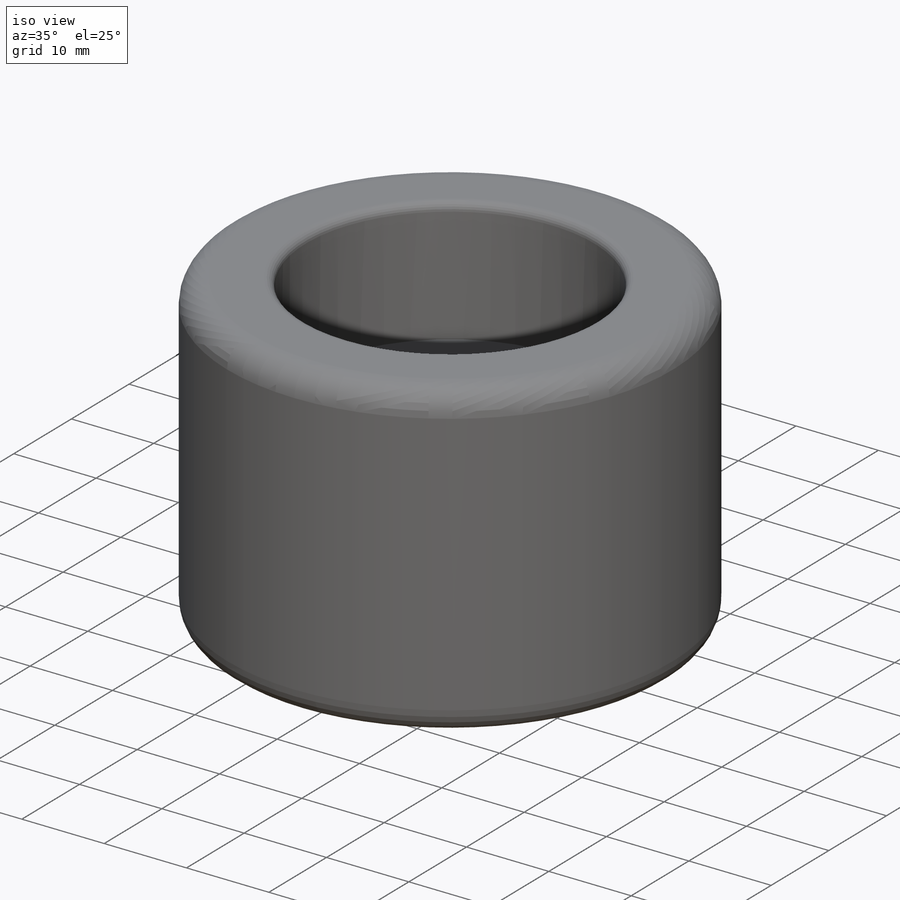
[diagram: iso view]
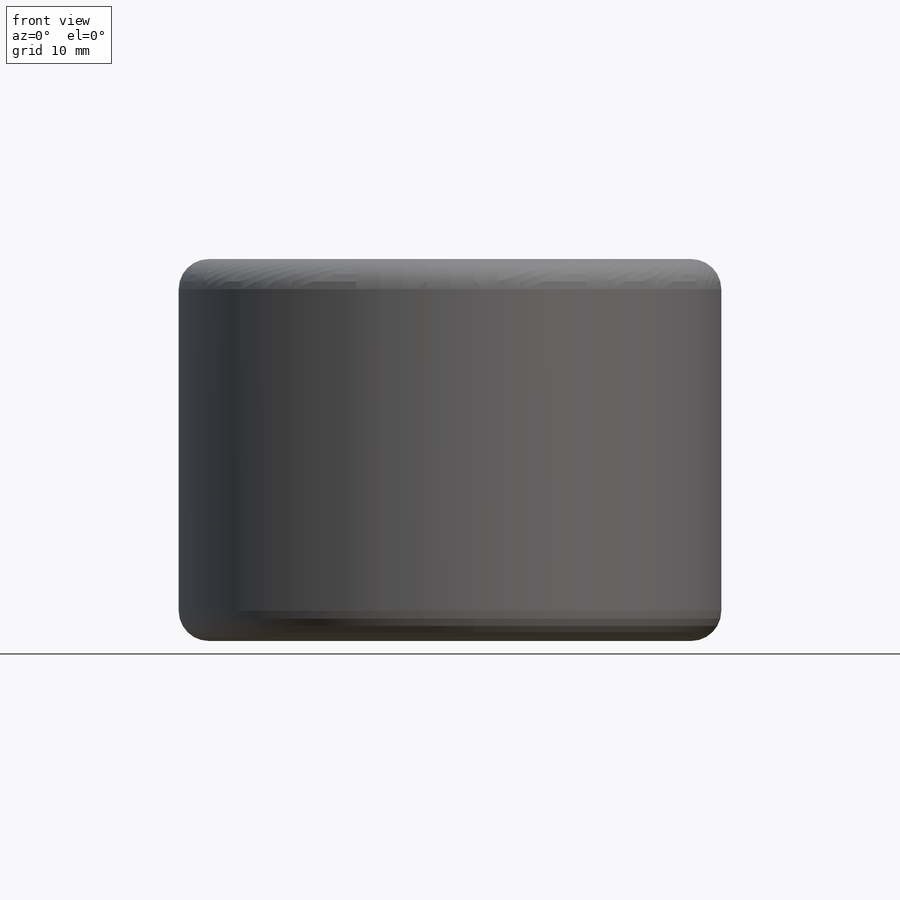
[diagram: front view]
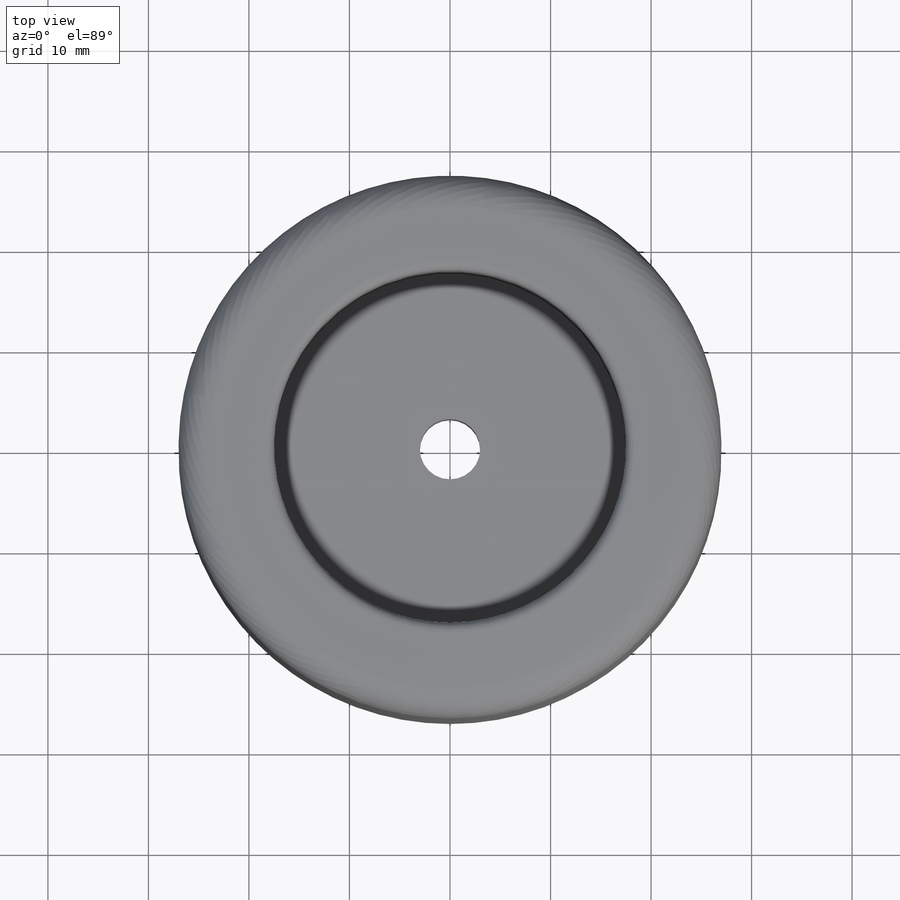
[diagram: top view]
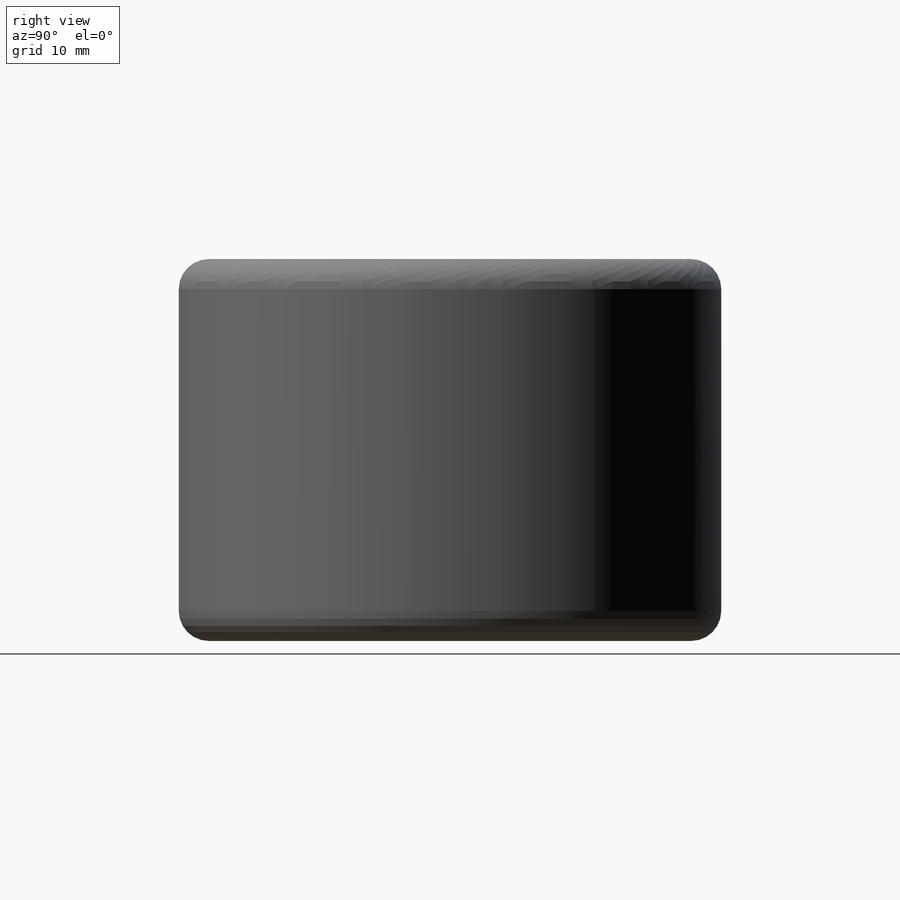
[diagram: right view]
SOLIDWORKS PART (.sldprt)
format: sldprt  version: not decoded by parser v0  size: 207,872 bytes
history: native  units: mm
features: sketch x4, fillet x4, plane x3, cut_extrude x3, material x1, extrude x1 (+9 scaffold rows collapsed)
feature tree (25):
  scaffold x9  (default folders/planes/origin — collapsed)
  material  "Mousse de polyuréthane rigide"
  plane  "Plan de face"
  plane  "Plan de dessus"
  plane  "Plan de droite"
  sketch  "Esquisse1"  dims[D1=54.0mm]
  extrude  "Boss.-Extru.1"  Depth=38mm
  fillet  "Congé1"  Radius=3mm
  fillet  "Congé2"  Radius=3mm
  sketch  "Esquisse2"  dims[D1=35.0mm]
  cut_extrude  "Enlèv. mat.-Extru.1"  Depth=15mm
  sketch  "Esquisse3"  dims[D1=35.0mm]
  cut_extrude  "Enlèv. mat.-Extru.2"  Depth=15mm
  sketch  "Esquisse4"  dims[D1=6.0mm]
  cut_extrude  "Enlèv. mat.-Extru.3"  Depth=15mm
  fillet  "Congé3"  Radius=1mm
  fillet  "Congé4"  Radius=1mm
decode coverage: 12 of 12 modeling features carry decoded parameters
note: suppression state not decoded; provenance and decode notes live in map.json
